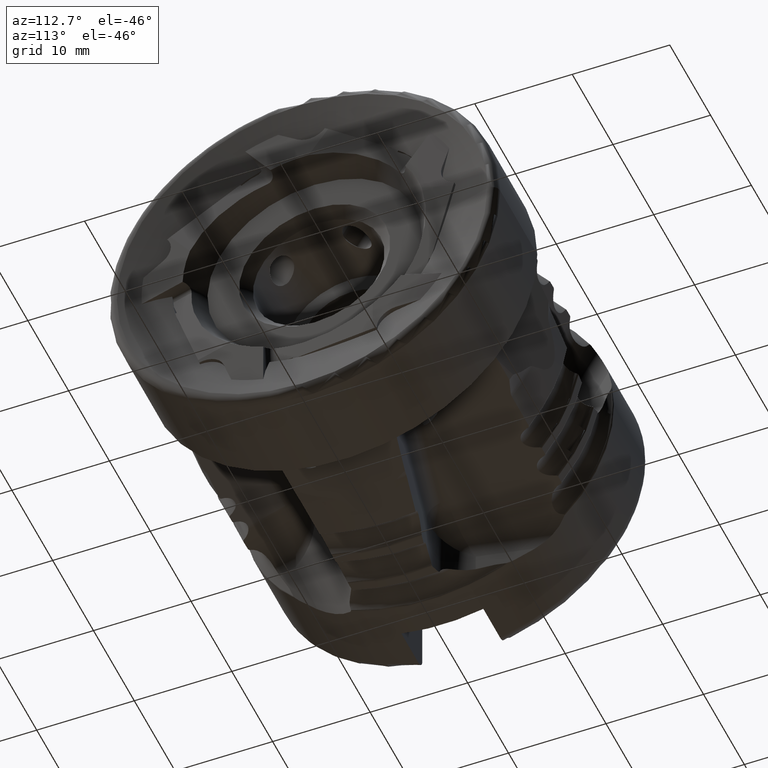
[diagram: clean part render]
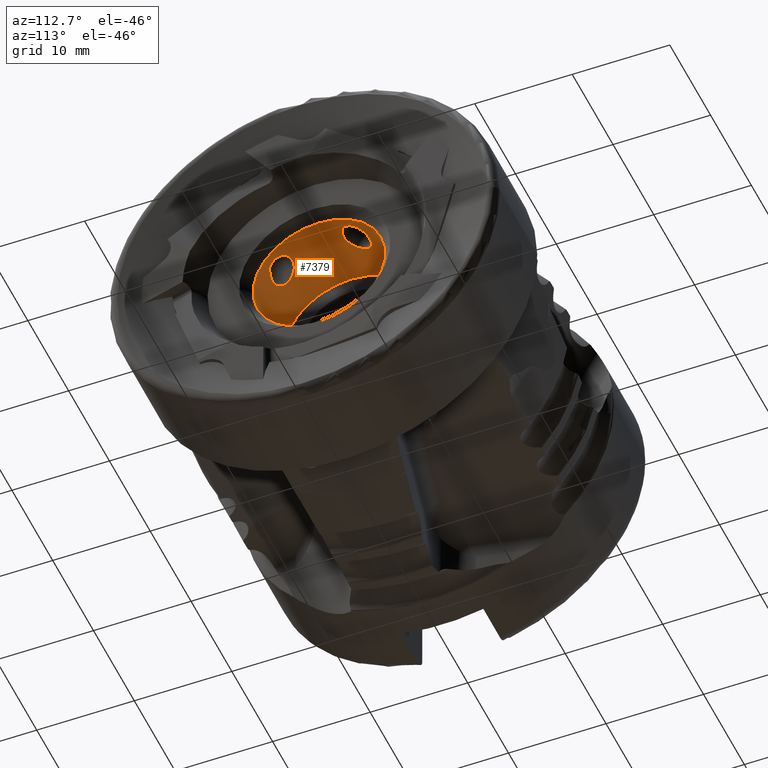
[diagram: same view with one face highlighted and labeled with its STEP entity id]
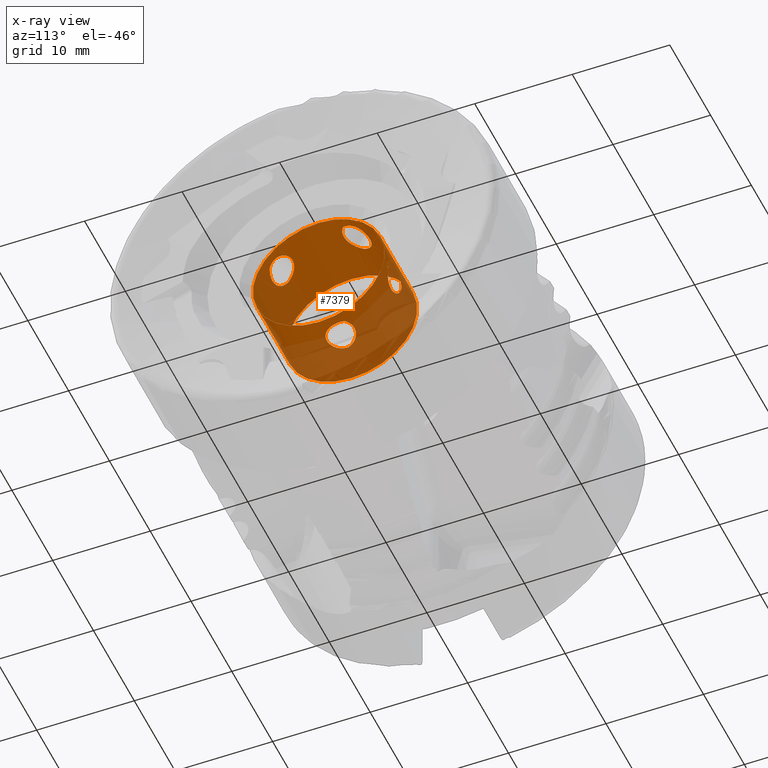
[diagram: x-ray of the same camera — body ghosted, the highlighted face saturated]
A machine part, auxiliary view. The second image highlights one B-rep face of the part: STEP entity #7379.
The next image is the same camera in x-ray: the body ghosted, the highlighted face saturated — about 40% of this face is hidden behind the body in this view.
In plain terms, the highlighted cylindrical surface (bore or boss wall) has radius 6.75 mm, axis along (1, -0, -0).
Its self-contained STEP definition (entity closure, byte-faithful):
#13 = CARTESIAN_POINT ( 'NONE',  ( -6.562962729986569600, 6.361129896721958900, -2.258414077148994900 ) ) ;
#57 = CARTESIAN_POINT ( 'NONE',  ( -4.628507243692084200, 2.143290621198036500, -6.400687878117828700 ) ) ;
#77 = CARTESIAN_POINT ( 'NONE',  ( -6.632598810697708700, 2.509359448074864200, -6.266384253155163000 ) ) ;
#100 = CARTESIAN_POINT ( 'NONE',  ( -4.628507243692084200, 2.143290621198036500, -6.400687878117828700 ) ) ;
#106 = EDGE_LOOP ( 'NONE', ( #3156, #3331 ) ) ;
#135 = CARTESIAN_POINT ( 'NONE',  ( -4.753537271056022600, 1.928210888572159400, 6.469583340819735200 ) ) ;
#144 = CARTESIAN_POINT ( 'NONE',  ( -5.340375718819776000, -5.720890938128531100, 3.582658467181218500 ) ) ;
#178 = CARTESIAN_POINT ( 'NONE',  ( -4.601500760271938400, 0.6569108333281361600, -6.718891829771303400 ) ) ;
#193 = ORIENTED_EDGE ( 'NONE', *, *, #6570, .T. ) ;
#214 = CARTESIAN_POINT ( 'NONE',  ( -6.897203383671992100, -0.03925624423654647300, -6.750224400219017300 ) ) ;
#283 = CARTESIAN_POINT ( 'NONE',  ( -5.340375718819649000, -5.175163203720067900, -4.333788254320718500 ) ) ;
#346 = ORIENTED_EDGE ( 'NONE', *, *, #6576, .T. ) ;
#469 = CARTESIAN_POINT ( 'NONE',  ( -6.151962625149814700, 6.726691502576442400, 0.5604664713769328400 ) ) ;
#470 = B_SPLINE_CURVE_WITH_KNOTS ( 'NONE', 3,
 ( #7919, #2109, #8747, #3788, #9574, #4587, #10460, #5445, #469, #6293, #1326, #7124, #2139, #7957, #2991, #8780 ),
 .UNSPECIFIED., .F., .F.,
 ( 4, 2, 2, 2, 2, 2, 2, 4 ),
 ( 9.492088142561525400E-005, 0.001078229137416579200, 0.001569883265412061000, 0.002061537393407543100, 0.002553191521403025100, 0.003044845649398506800, 0.003536499777393988800, 0.004028153905389470500 ),
 .UNSPECIFIED. ) ;
#473 = VERTEX_POINT ( 'NONE', #911 ) ;
#636 = CYLINDRICAL_SURFACE ( 'NONE', #1897, 6.749999999999999100 ) ;
#682 = CARTESIAN_POINT ( 'NONE',  ( -5.062785515951875800, 3.889592762792239500, 5.517271498485262000 ) ) ;
#685 = CARTESIAN_POINT ( 'NONE',  ( -5.835260772214229300, -6.492304655153692900, -1.848626511211653100 ) ) ;
#713 = CARTESIAN_POINT ( 'NONE',  ( -7.704817309026283900, 3.124709898369229000, 5.988172267619707300 ) ) ;
#719 = CARTESIAN_POINT ( 'NONE',  ( -4.572706844893129000, -5.432797837288903000, 4.007384649799543100 ) ) ;
#754 = CARTESIAN_POINT ( 'NONE',  ( -4.881217781916467000, -4.175304007321551000, 5.304342852305850900 ) ) ;
#802 = CARTESIAN_POINT ( 'NONE',  ( -7.625416331893173800, -4.558061580945461900, 4.982963148186132500 ) ) ;
#835 = CARTESIAN_POINT ( 'NONE',  ( -4.601500760272130300, 6.593042468273589300, -1.451492430105068900 ) ) ;
#867 = CARTESIAN_POINT ( 'NONE',  ( -6.897203383672222200, 6.407714055678463100, -2.123268962398412500 ) ) ;
#902 = FACE_OUTER_BOUND ( 'NONE', #9197, .T. ) ;
#911 = CARTESIAN_POINT ( 'NONE',  ( -4.628507243691975000, -5.496188475718495800, 3.918470650570091300 ) ) ;
#942 = CARTESIAN_POINT ( 'NONE',  ( -6.151031138283658000, 2.611742987942829300, -6.224250934902922700 ) ) ;
#952 = CARTESIAN_POINT ( 'NONE',  ( -7.515866037187138600, 2.335365086268667200, 6.334856948482054900 ) ) ;
#998 = CARTESIAN_POINT ( 'NONE',  ( -4.892633294636015200, -5.608320125268617700, 3.756963027205478100 ) ) ;
#1031 = CARTESIAN_POINT ( 'NONE',  ( -4.800888753622814400, 0.3506565822136740200, -6.741617073394024800 ) ) ;
#1072 = CARTESIAN_POINT ( 'NONE',  ( -7.373614632049945600, 0.3436279499441656200, -6.744461946211076000 ) ) ;
#1074 = ORIENTED_EDGE ( 'NONE', *, *, #9216, .T. ) ;
#1096 = CARTESIAN_POINT ( 'NONE',  ( -7.731765150163926000, -5.931241050126804000, -3.222247601487198100 ) ) ;
#1135 = CARTESIAN_POINT ( 'NONE',  ( -4.892633294635844600, -5.306150397106824500, -4.172863977961065500 ) ) ;
#1164 = FACE_BOUND ( 'NONE', #9493, .T. ) ;
#1326 = CARTESIAN_POINT ( 'NONE',  ( -5.658286513664422500, 6.728289631805298900, 0.5423591512712820900 ) ) ;
#1485 = CARTESIAN_POINT ( 'NONE',  ( -4.572706844893046400, 2.132422425767472000, 6.405247744653068200 ) ) ;
#1487 = CARTESIAN_POINT ( 'NONE',  ( -4.444159013303385000, -5.749503099887510500, -3.538411708513420400 ) ) ;
#1513 = CARTESIAN_POINT ( 'NONE',  ( -5.373007371697509500, 4.043427036645010000, 5.405251288036574000 ) ) ;
#1517 = CARTESIAN_POINT ( 'NONE',  ( -6.443439033373020500, -6.482425979309440800, -1.881745218601790400 ) ) ;
#1600 = CARTESIAN_POINT ( 'NONE',  ( -5.162030374138344000, -3.987888434183093400, 5.446355618576665900 ) ) ;
#1634 = CARTESIAN_POINT ( 'NONE',  ( -7.731765150163965900, -4.897393860734616100, 4.645216181496726500 ) ) ;
#1667 = CARTESIAN_POINT ( 'NONE',  ( -4.800888753623072000, 6.520017691111437600, -1.749780017751231000 ) ) ;
#1702 = CARTESIAN_POINT ( 'NONE',  ( -7.373614632050092200, 6.520551359123761200, -1.757343758318624400 ) ) ;
#1773 = CARTESIAN_POINT ( 'NONE',  ( -5.657490306637339600, 2.594844251194516400, -6.231438139822872200 ) ) ;
#1780 = CARTESIAN_POINT ( 'NONE',  ( -7.081708203612381100, 1.864875385867853300, 6.491716583334556000 ) ) ;
#1790 = CARTESIAN_POINT ( 'NONE',  ( -7.532450905896221900, -5.315264945147697900, 4.167466447390111700 ) ) ;
#1829 = CARTESIAN_POINT ( 'NONE',  ( -4.628507243691975000, -5.496188475718495800, 3.918470650570091300 ) ) ;
#1865 = CARTESIAN_POINT ( 'NONE',  ( -5.062785515951890900, 0.09622417340644987000, -6.749811668247923000 ) ) ;
#1897 = AXIS2_PLACEMENT_3D ( 'NONE', #8126, #9764, #6468 ) ;
#1899 = CARTESIAN_POINT ( 'NONE',  ( -7.704817309026432200, 0.9918159368218434400, -6.681191525702776500 ) ) ;
#1915 = B_SPLINE_CURVE_WITH_KNOTS ( 'NONE', 3,
 ( #5919, #7560, #1790, #7596, #2623, #8424, #3472, #9252, #4281, #10114, #5116, #144, #5952, #998, #6804, #1829 ),
 .UNSPECIFIED., .F., .F.,
 ( 4, 2, 2, 2, 2, 2, 2, 4 ),
 ( 9.492088147291394000E-005, 0.001078229137463552700, 0.001569883265458871200, 0.002061537393454189400, 0.002553191521449507500, 0.003044845649444826500, 0.003536499777440144600, 0.004028153905435463200 ),
 .UNSPECIFIED. ) ;
#1927 = CARTESIAN_POINT ( 'NONE',  ( -7.532450905896364900, -5.606003318887947500, -3.767299406186830800 ) ) ;
#1970 = CARTESIAN_POINT ( 'NONE',  ( -4.628507243691759100, -5.425102689420846500, -4.016311841632656900 ) ) ;
#1993 = CARTESIAN_POINT ( 'NONE',  ( -4.628507243692175700, 6.749729141089992400, 0.06046918157664112800 ) ) ;
#2048 = CARTESIAN_POINT ( 'NONE',  ( -4.628507243691824900, 2.028271402851390200, 6.438059887603970700 ) ) ;
#2109 = CARTESIAN_POINT ( 'NONE',  ( -7.690862113869937600, 6.735028101375398500, -0.5555380486520457000 ) ) ;
#2139 = CARTESIAN_POINT ( 'NONE',  ( -5.184134031673846900, 6.738217009586636900, 0.4055334104599771500 ) ) ;
#2152 = DIRECTION ( 'NONE',  ( 1.000000000000000000, 0.0000000000000000000, 0.0000000000000000000 ) ) ;
#2298 = VERTEX_POINT ( 'NONE', #9237 ) ;
#2305 = CARTESIAN_POINT ( 'NONE',  ( -4.628507243691824900, 2.028271402851390200, 6.438059887603970700 ) ) ;
#2309 = CARTESIAN_POINT ( 'NONE',  ( -4.464062723854026700, -6.047554477961855700, -3.006616352069055900 ) ) ;
#2346 = CARTESIAN_POINT ( 'NONE',  ( -5.835260772214255100, 4.165789398391856600, 5.311651193511378800 ) ) ;
#2348 = CARTESIAN_POINT ( 'NONE',  ( -6.789733617201006800, -6.448441138775673500, -1.995498580951676100 ) ) ;
#2389 = CARTESIAN_POINT ( 'NONE',  ( -4.572706844893063200, 6.750707374785545100, -0.04872383724045293400 ) ) ;
#2417 = VERTEX_POINT ( 'NONE', #1993 ) ;
#2420 = CARTESIAN_POINT ( 'NONE',  ( -5.486772367164498100, -3.851273976421645700, 5.543593030414357700 ) ) ;
#2497 = CARTESIAN_POINT ( 'NONE',  ( -5.062785515952197300, 6.449187275704459500, -1.994291887175809100 ) ) ;
#2529 = CARTESIAN_POINT ( 'NONE',  ( -7.704817309026309700, 6.660678716905369600, -1.121328714436706800 ) ) ;
#2558 = AXIS2_PLACEMENT_3D ( 'NONE', #9839, #4842, #10715 ) ;
#2560 = EDGE_CURVE ( 'NONE', #7956, #7956, #9401, .T. ) ;
#2606 = CARTESIAN_POINT ( 'NONE',  ( -5.183686201609404500, 2.467755241413539700, -6.283170856041898000 ) ) ;
#2614 = CARTESIAN_POINT ( 'NONE',  ( -6.315232248109732700, 1.567528796804754900, 6.565612385493104800 ) ) ;
#2623 = CARTESIAN_POINT ( 'NONE',  ( -7.065396372821100900, -5.585452374138565500, 3.791094927635031200 ) ) ;
#2693 = CARTESIAN_POINT ( 'NONE',  ( -5.373007371697569000, -0.09407419611822119600, -6.749606931749255500 ) ) ;
#2726 = CARTESIAN_POINT ( 'NONE',  ( -7.690862113870346100, -5.775289263691403700, -3.509310469380919600 ) ) ;
#2769 = CARTESIAN_POINT ( 'NONE',  ( -7.065396372821217200, -5.331545239701553900, -4.140568116952782600 ) ) ;
#2991 = CARTESIAN_POINT ( 'NONE',  ( -4.755126716295889000, 6.748777379918471400, 0.1667072676134653000 ) ) ;
#3037 = B_SPLINE_CURVE_WITH_KNOTS ( 'NONE', 3,
 ( #4155, #9157, #9191, #4225, #10057, #5050, #77, #5899, #942, #6744, #1773, #7581, #2606, #8403, #3454, #57 ),
 .UNSPECIFIED., .F., .F.,
 ( 4, 2, 2, 2, 2, 2, 2, 4 ),
 ( 4.773437459959570800E-005, 0.001031519548520023900, 0.001523412135480237700, 0.002015304722440451500, 0.002507197309400664900, 0.002999089896360879100, 0.003490982483321093800, 0.003982875070281308000 ),
 .UNSPECIFIED. ) ;
#3055 = B_SPLINE_CURVE_WITH_KNOTS ( 'NONE', 3,
 ( #3321, #2389, #4121, #9948, #4944, #10810, #5801, #835, #6639, #1667, #7475, #2497, #8299, #3348, #9123, #4163, #9981, #4974, #13, #5838, #867, #6673, #1702, #7506, #2529, #8335 ),
 .UNSPECIFIED., .F., .F.,
 ( 4, 2, 2, 2, 2, 2, 2, 2, 2, 2, 2, 2, 4 ),
 ( 3.081574959853542000E-016, 0.0003629529093629713600, 0.0007259058187256344900, 0.001451811637450960800, 0.001814764546813624700, 0.002177717456176289000, 0.002540670365538951600, 0.002903623274901614600, 0.003629529093626938100, 0.003992482002989597600, 0.004355434912352257200, 0.005081340731077578000, 0.005807246549802899700 ),
 .UNSPECIFIED. ) ;
#3098 = VERTEX_POINT ( 'NONE', #7087 ) ;
#3102 = EDGE_CURVE ( 'NONE', #4486, #2417, #470, .T. ) ;
#3119 = FACE_OUTER_BOUND ( 'NONE', #3928, .T. ) ;
#3156 = ORIENTED_EDGE ( 'NONE', *, *, #3102, .T. ) ;
#3168 = CARTESIAN_POINT ( 'NONE',  ( -4.444159013303391200, 2.571619498217228000, 6.242108335406389800 ) ) ;
#3171 = CARTESIAN_POINT ( 'NONE',  ( -4.660911963582198500, -6.229479787515085600, -2.601142514332613200 ) ) ;
#3200 = CARTESIAN_POINT ( 'NONE',  ( -6.443439033373064000, 4.138330693973010500, 5.332638250648313900 ) ) ;
#3203 = CARTESIAN_POINT ( 'NONE',  ( -7.731765150164005000, 6.692464426676080400, -0.8794429473685107000 ) ) ;
#3205 = CARTESIAN_POINT ( 'NONE',  ( -7.201737222025470500, -6.368492439751256600, -2.241224234414351400 ) ) ;
#3242 = CARTESIAN_POINT ( 'NONE',  ( -4.464451342122298900, -5.220154731460303000, 4.280901470319702400 ) ) ;
#3286 = CARTESIAN_POINT ( 'NONE',  ( -6.084331092814851500, -3.748938980525146300, 5.613305897608446700 ) ) ;
#3321 = CARTESIAN_POINT ( 'NONE',  ( -4.628507243692175700, 6.749729141089992400, 0.06046918157664112800 ) ) ;
#3331 = ORIENTED_EDGE ( 'NONE', *, *, #5027, .T. ) ;
#3338 = AXIS2_PLACEMENT_3D ( 'NONE', #7138, #2152, #7966 ) ;
#3348 = CARTESIAN_POINT ( 'NONE',  ( -5.373007371697895000, 6.390187129538333000, -2.175213124495054100 ) ) ;
#3380 = FACE_BOUND ( 'NONE', #4090, .T. ) ;
#3454 = CARTESIAN_POINT ( 'NONE',  ( -4.755139410613847600, 2.244045035012940800, -6.366949943338774200 ) ) ;
#3459 = CARTESIAN_POINT ( 'NONE',  ( -5.821947754161459300, 1.543615894936180000, 6.571130104895596300 ) ) ;
#3472 = CARTESIAN_POINT ( 'NONE',  ( -6.633057441174085700, -5.713337845861407700, 3.594751608664773700 ) ) ;
#3507 = CARTESIAN_POINT ( 'NONE',  ( -4.528765209375205100, 1.931819859145514200, -6.468709674331024400 ) ) ;
#3510 = B_SPLINE_CURVE_WITH_KNOTS ( 'NONE', 3,
 ( #2305, #1485, #6456, #8115, #3168, #8937, #3979, #9795, #4799, #10656, #5647, #682, #6491, #1513, #7326, #2346, #8149, #3200, #8974, #4014, #9823, #4830, #10701, #5679, #713, #6530 ),
 .UNSPECIFIED., .F., .F.,
 ( 4, 2, 2, 2, 2, 2, 2, 2, 2, 2, 2, 2, 4 ),
 ( 3.295974604355933500E-017, 0.0003629529093626679500, 0.0007259058187253029400, 0.001451811637450574200, 0.001814764546813209900, 0.002177717456175845800, 0.002540670365538481500, 0.002903623274901116800, 0.003629529093626385600, 0.003992482002989019900, 0.004355434912351654300, 0.005081340731076923100, 0.005807246549802191900 ),
 .UNSPECIFIED. ) ;
#3545 = CARTESIAN_POINT ( 'NONE',  ( -5.835260772214381200, -0.2480841814183603600, -6.745805656273743600 ) ) ;
#3591 = CARTESIAN_POINT ( 'NONE',  ( -3.500000000000002700, 0.0000000000000000000, -6.749999999999999100 ) ) ;
#3600 = ORIENTED_EDGE ( 'NONE', *, *, #2560, .T. ) ;
#3605 = CARTESIAN_POINT ( 'NONE',  ( -6.633057441174116800, -5.184330430859843900, -4.322867850468114200 ) ) ;
#3613 = VERTEX_POINT ( 'NONE', #9740 ) ;
#3761 = CARTESIAN_POINT ( 'NONE',  ( -7.731765150163938400, 2.904485187897867700, 6.093149086743364900 ) ) ;
#3788 = CARTESIAN_POINT ( 'NONE',  ( -7.195127315247674500, 6.750135562775411400, 0.1118006751513406800 ) ) ;
#3928 = EDGE_LOOP ( 'NONE', ( #3600 ) ) ;
#3979 = CARTESIAN_POINT ( 'NONE',  ( -4.464062723854017800, 3.125329596031880100, 5.987067058970756900 ) ) ;
#3983 = CARTESIAN_POINT ( 'NONE',  ( -4.881217781916480400, -6.334969729293277400, -2.331817998322640600 ) ) ;
#3988 = CARTESIAN_POINT ( 'NONE',  ( -4.628507243691759100, -5.425102689420846500, -4.016311841632656900 ) ) ;
#4014 = CARTESIAN_POINT ( 'NONE',  ( -6.789733617201059200, 4.043973831642115400, 5.404690865889412200 ) ) ;
#4016 = CARTESIAN_POINT ( 'NONE',  ( -7.625416331893043200, -6.147598062460839500, -2.795153873098911800 ) ) ;
#4056 = EDGE_CURVE ( 'NONE', #8186, #8204, #3510, .T. ) ;
#4059 = CARTESIAN_POINT ( 'NONE',  ( -4.423760434449480500, -4.901764392209607900, 4.646910705136242800 ) ) ;
#4087 = CARTESIAN_POINT ( 'NONE',  ( -6.562962729986192100, -3.818799701756661900, 5.566073709959102400 ) ) ;
#4090 = EDGE_LOOP ( 'NONE', ( #9304, #1074 ) ) ;
#4121 = CARTESIAN_POINT ( 'NONE',  ( -4.528765209375038100, 6.749073654340992200, -0.1616713556976508400 ) ) ;
#4155 = CARTESIAN_POINT ( 'NONE',  ( -7.731765150163988100, 1.231685296287867900, -6.636674719383862000 ) ) ;
#4163 = CARTESIAN_POINT ( 'NONE',  ( -5.835260772214711600, 6.338980198965968400, -2.320510665866939400 ) ) ;
#4168 = CARTESIAN_POINT ( 'NONE',  ( -7.711300335031898700, 2.756939837632047300, 6.163481074076949000 ) ) ;
#4225 = CARTESIAN_POINT ( 'NONE',  ( -7.194614662274393200, 2.192709914365976500, -6.385054007797604600 ) ) ;
#4271 = CARTESIAN_POINT ( 'NONE',  ( -5.337896825870650700, 1.640187364234569700, 6.547812395982935700 ) ) ;
#4281 = CARTESIAN_POINT ( 'NONE',  ( -6.151962625150679800, -5.771441667781663100, 3.500423161814223000 ) ) ;
#4324 = CARTESIAN_POINT ( 'NONE',  ( -4.444159013303417000, 1.588535345640249100, -6.561531739633100100 ) ) ;
#4346 = CARTESIAN_POINT ( 'NONE',  ( -6.443439033373271800, -0.2135337402258184700, -6.746644720654988000 ) ) ;
#4407 = CARTESIAN_POINT ( 'NONE',  ( -6.151962625150692300, -5.112573815222108700, -4.407276962056849700 ) ) ;
#4486 = VERTEX_POINT ( 'NONE', #3203 ) ;
#4587 = CARTESIAN_POINT ( 'NONE',  ( -6.783583853415651200, 6.739528286536342200, 0.3852758091118223000 ) ) ;
#4604 = EDGE_CURVE ( 'NONE', #3098, #8718, #3037, .T. ) ;
#4799 = CARTESIAN_POINT ( 'NONE',  ( -4.660911963582190500, 3.510841805179289100, 5.765964847441669100 ) ) ;
#4802 = CARTESIAN_POINT ( 'NONE',  ( -5.162030374138334200, -6.412117298941924800, -2.109690838038266400 ) ) ;
#4830 = CARTESIAN_POINT ( 'NONE',  ( -7.201737222025527400, 3.834860060237885300, 5.556494429268099100 ) ) ;
#4833 = CARTESIAN_POINT ( 'NONE',  ( -7.731765150163926000, -5.931241050126804000, -3.222247601487198100 ) ) ;
#4842 = DIRECTION ( 'NONE',  ( 1.000000000000000000, -0.0000000000000000000, -0.0000000000000000000 ) ) ;
#4864 = ORIENTED_EDGE ( 'NONE', *, *, #10174, .F. ) ;
#4870 = CARTESIAN_POINT ( 'NONE',  ( -4.601500760271951800, -4.480717557239457500, 5.049575173750509900 ) ) ;
#4908 = CARTESIAN_POINT ( 'NONE',  ( -6.897203383671884700, -3.935923383390841600, 5.484120497044258100 ) ) ;
#4944 = CARTESIAN_POINT ( 'NONE',  ( -4.444159013303356600, 6.731271935823616400, -0.5168379248413682600 ) ) ;
#4974 = CARTESIAN_POINT ( 'NONE',  ( -6.443439033373559600, 6.350454870105028100, -2.287910528782974400 ) ) ;
#5009 = EDGE_CURVE ( 'NONE', #473, #3613, #8687, .T. ) ;
#5027 = EDGE_CURVE ( 'NONE', #2417, #4486, #3055, .T. ) ;
#5043 = CARTESIAN_POINT ( 'NONE',  ( -4.528765209375100300, -5.555143321247167700, -3.836211086394459600 ) ) ;
#5050 = CARTESIAN_POINT ( 'NONE',  ( -6.782854380227430400, 2.449435534377363900, -6.290468590226884900 ) ) ;
#5107 = CARTESIAN_POINT ( 'NONE',  ( -4.891245222027425400, 1.840733494421708400, 6.494598475840686700 ) ) ;
#5116 = CARTESIAN_POINT ( 'NONE',  ( -5.658286513665124100, -5.762091365770456400, 3.516011648294123000 ) ) ;
#5149 = CARTESIAN_POINT ( 'NONE',  ( -4.464062723853983200, 0.9906649655363907200, -6.680661642270499600 ) ) ;
#5186 = CARTESIAN_POINT ( 'NONE',  ( -6.789733617201292800, -0.09484597043634034100, -6.749474938743504500 ) ) ;
#5256 = CARTESIAN_POINT ( 'NONE',  ( -5.658286513665056600, -5.124509944644002800, -4.393567189160887000 ) ) ;
#5445 = CARTESIAN_POINT ( 'NONE',  ( -6.313985754405390300, 6.728632043531531400, 0.5384972532065018800 ) ) ;
#5571 = FACE_BOUND ( 'NONE', #7615, .T. ) ;
#5647 = CARTESIAN_POINT ( 'NONE',  ( -4.881217781916479500, 3.754489939404948500, 5.610082169030199000 ) ) ;
#5650 = CARTESIAN_POINT ( 'NONE',  ( -5.486772367164443900, -6.462379383972227700, -1.949714755017240000 ) ) ;
#5679 = CARTESIAN_POINT ( 'NONE',  ( -7.625416331893083200, 3.330561082621548200, 5.874794463366263200 ) ) ;
#5724 = CARTESIAN_POINT ( 'NONE',  ( -4.800888753622818000, -4.246310226544491000, 5.247972014299550700 ) ) ;
#5767 = CARTESIAN_POINT ( 'NONE',  ( -7.373614632049839900, -4.242296117877659300, 5.254404891147263600 ) ) ;
#5801 = CARTESIAN_POINT ( 'NONE',  ( -4.464062723854093300, 6.659819098126984500, -1.122259610192143800 ) ) ;
#5838 = CARTESIAN_POINT ( 'NONE',  ( -6.789733617201537000, 6.389823105350076000, -2.175906337407239800 ) ) ;
#5899 = CARTESIAN_POINT ( 'NONE',  ( -6.314534282920853100, 2.591265805688427900, -6.232960610504730600 ) ) ;
#5909 = CARTESIAN_POINT ( 'NONE',  ( -7.661734827048907600, 2.610399952864070400, 6.226568455415978100 ) ) ;
#5919 = CARTESIAN_POINT ( 'NONE',  ( -7.731765150163965900, -4.897393860734616100, 4.645216181496726500 ) ) ;
#5941 = CARTESIAN_POINT ( 'NONE',  ( -4.628507243691824900, 2.028271402851390200, 6.438059887603970700 ) ) ;
#5952 = CARTESIAN_POINT ( 'NONE',  ( -5.184134031674192400, -5.689698630522269000, 3.632541164132216900 ) ) ;
#5992 = CARTESIAN_POINT ( 'NONE',  ( -4.660911963582157600, 0.5488184176109829300, -6.728384586765130800 ) ) ;
#6028 = CARTESIAN_POINT ( 'NONE',  ( -7.201737222025787600, 0.1635585201870747900, -6.749372610440863300 ) ) ;
#6094 = CARTESIAN_POINT ( 'NONE',  ( -5.184134031674043200, -5.212965514561597400, -4.288708005830367900 ) ) ;
#6162 = B_SPLINE_CURVE_WITH_KNOTS ( 'NONE', 3,
 ( #3988, #8094, #5043, #6460, #1487, #7294, #2309, #8117, #3171, #8940, #3983, #9797, #4802, #10661, #5650, #685, #6493, #1517, #7329, #2348, #8151, #3205, #8976, #4016, #9828, #4833 ),
 .UNSPECIFIED., .F., .F.,
 ( 4, 2, 2, 2, 2, 2, 2, 2, 2, 2, 2, 2, 4 ),
 ( 2.118387885562784400E-016, 0.0003629529093628378400, 0.0007259058187254638300, 0.001451811637450714500, 0.001814764546813339100, 0.002177717456175962900, 0.002540670365538587300, 0.002903623274901211700, 0.003629529093626461000, 0.003992482002989085900, 0.004355434912351709000, 0.005081340731076958700, 0.005807246549802208400 ),
 .UNSPECIFIED. ) ;
#6293 = CARTESIAN_POINT ( 'NONE',  ( -5.823247590510537600, 6.726506487045809600, 0.5626826068952970300 ) ) ;
#6295 = CARTESIAN_POINT ( 'NONE',  ( -4.628507243692084200, 2.143290621198036500, -6.400687878117828700 ) ) ;
#6302 = B_SPLINE_CURVE_WITH_KNOTS ( 'NONE', 3,
 ( #100, #10073, #3507, #9285, #4324, #10152, #5149, #178, #5992, #1031, #6835, #1865, #7663, #2693, #8494, #3545, #9324, #4346, #10196, #5186, #214, #6028, #1072, #6867, #1899, #7706 ),
 .UNSPECIFIED., .F., .F.,
 ( 4, 2, 2, 2, 2, 2, 2, 2, 2, 2, 2, 2, 4 ),
 ( 1.889455522400814100E-016, 0.0003629529093628756800, 0.0007259058187255624900, 0.001451811637450935900, 0.001814764546813623200, 0.002177717456176310700, 0.002540670365538998500, 0.002903623274901685800, 0.003629529093627060400, 0.003992482002989746800, 0.004355434912352432400, 0.005081340731077802600, 0.005807246549803172000 ),
 .UNSPECIFIED. ) ;
#6456 = CARTESIAN_POINT ( 'NONE',  ( -4.528765209375118900, 2.239337051813883800, 6.368791281502817400 ) ) ;
#6460 = CARTESIAN_POINT ( 'NONE',  ( -4.464451342122262500, -5.684495764253172800, -3.641790867850669000 ) ) ;
#6468 = DIRECTION ( 'NONE',  ( 0.0000000000000000000, 0.0000000000000000000, -1.000000000000000000 ) ) ;
#6491 = CARTESIAN_POINT ( 'NONE',  ( -5.162030374138338700, 3.947466703274197900, 5.475723725137569000 ) ) ;
#6493 = CARTESIAN_POINT ( 'NONE',  ( -6.084331092814730700, -6.497057007735485900, -1.830845929635244400 ) ) ;
#6506 = ORIENTED_EDGE ( 'NONE', *, *, #4604, .T. ) ;
#6530 = CARTESIAN_POINT ( 'NONE',  ( -7.731765150163938400, 2.904485187897867700, 6.093149086743364900 ) ) ;
#6538 = CARTESIAN_POINT ( 'NONE',  ( -4.628507243691975000, -5.496188475718495800, 3.918470650570091300 ) ) ;
#6570 = EDGE_CURVE ( 'NONE', #3613, #473, #1915, .T. ) ;
#6575 = CARTESIAN_POINT ( 'NONE',  ( -5.062785515951874900, -4.045286745903339000, 5.404153198400496000 ) ) ;
#6576 = EDGE_CURVE ( 'NONE', #8718, #3098, #6302, .T. ) ;
#6601 = CARTESIAN_POINT ( 'NONE',  ( -7.704817309026362100, -4.729501794730159000, 4.822222706315067800 ) ) ;
#6639 = CARTESIAN_POINT ( 'NONE',  ( -4.660911963582373500, 6.568668223250533300, -1.557227849669494200 ) ) ;
#6673 = CARTESIAN_POINT ( 'NONE',  ( -7.201737222025967900, 6.469577164376495700, -1.930117441575345500 ) ) ;
#6703 = B_SPLINE_CURVE_WITH_KNOTS ( 'NONE', 3,
 ( #10064, #4168, #5909, #952, #6753, #1780, #7589, #2614, #8413, #3459, #9242, #4271, #10102, #5107, #135, #5941 ),
 .UNSPECIFIED., .F., .F.,
 ( 4, 2, 2, 2, 2, 2, 2, 4 ),
 ( 0.001589601431055851100, 0.002081154011416485800, 0.002572706591777120500, 0.003555811752498392000, 0.004047364332859026300, 0.004538916913219661000, 0.005030469493580295600, 0.005522022073940930300 ),
 .UNSPECIFIED. ) ;
#6744 = CARTESIAN_POINT ( 'NONE',  ( -5.823170344173398400, 2.613708238653683000, -6.223425935841311800 ) ) ;
#6753 = CARTESIAN_POINT ( 'NONE',  ( -7.420129884510642700, 2.207261435236826100, 6.380039816279002600 ) ) ;
#6787 = B_SPLINE_CURVE_WITH_KNOTS ( 'NONE', 3,
 ( #1096, #2726, #1927, #7735, #2769, #8555, #3605, #9399, #4407, #10256, #5256, #283, #6094, #1135, #6940, #1970 ),
 .UNSPECIFIED., .F., .F.,
 ( 4, 2, 2, 2, 2, 2, 2, 4 ),
 ( 9.492088147403771600E-005, 0.001078229137464818200, 0.001569883265460210000, 0.002061537393455601900, 0.002553191521450994200, 0.003044845649446385600, 0.003536499777441777900, 0.004028153905437170100 ),
 .UNSPECIFIED. ) ;
#6804 = CARTESIAN_POINT ( 'NONE',  ( -4.755126716295404100, -5.557863664960250600, 3.831962802336284400 ) ) ;
#6835 = CARTESIAN_POINT ( 'NONE',  ( -4.881217781916466200, 0.2600773969165233700, -6.745485630847988500 ) ) ;
#6867 = CARTESIAN_POINT ( 'NONE',  ( -7.625416331893245700, 0.7586370291718496100, -6.710463245547317400 ) ) ;
#6874 = EDGE_CURVE ( 'NONE', #8204, #8186, #6703, .T. ) ;
#6940 = CARTESIAN_POINT ( 'NONE',  ( -4.755126716295183800, -5.361887518254389900, -4.101700827505842600 ) ) ;
#7087 = CARTESIAN_POINT ( 'NONE',  ( -7.731765150163988100, 1.231685296287867900, -6.636674719383862000 ) ) ;
#7124 = CARTESIAN_POINT ( 'NONE',  ( -5.340375718819419900, 6.734131802921506700, 0.4642237384145199700 ) ) ;
#7138 = CARTESIAN_POINT ( 'NONE',  ( -3.500000000000002700, 0.0000000000000000000, 0.0000000000000000000 ) ) ;
#7282 = CIRCLE ( 'NONE', #2558, 6.749999999999998200 ) ;
#7294 = CARTESIAN_POINT ( 'NONE',  ( -4.423760434449495600, -5.934203206376340100, -3.225880587324424700 ) ) ;
#7326 = CARTESIAN_POINT ( 'NONE',  ( -5.486772367164463500, 4.082161166555706300, 5.375843667610301900 ) ) ;
#7329 = CARTESIAN_POINT ( 'NONE',  ( -6.562962729986023400, -6.473724677992542800, -1.911882972460656300 ) ) ;
#7379 = ADVANCED_FACE ( 'NONE', ( #3380, #1164, #7790, #9727, #5571, #3119, #902 ), #636, .F. ) ;
#7405 = CARTESIAN_POINT ( 'NONE',  ( -5.373007371697536200, -3.891211789861521300, 5.515842138235611500 ) ) ;
#7475 = CARTESIAN_POINT ( 'NONE',  ( -4.881217781916740600, 6.495706400293234300, -1.837121392165757400 ) ) ;
#7506 = CARTESIAN_POINT ( 'NONE',  ( -7.625416331893327500, 6.616461531613167900, -1.352140492905701900 ) ) ;
#7560 = CARTESIAN_POINT ( 'NONE',  ( -7.690862113870214700, -5.122215119519546900, 4.408189914146285900 ) ) ;
#7581 = CARTESIAN_POINT ( 'NONE',  ( -5.339739411065238500, 2.522263008472998000, -6.261168205254120000 ) ) ;
#7589 = CARTESIAN_POINT ( 'NONE',  ( -6.787789310910929100, 1.694939465931668600, 6.534319421962618600 ) ) ;
#7596 = CARTESIAN_POINT ( 'NONE',  ( -7.195127315248259800, -5.526689172670011800, 3.877181488594725300 ) ) ;
#7615 = EDGE_LOOP ( 'NONE', ( #6506, #346 ) ) ;
#7663 = CARTESIAN_POINT ( 'NONE',  ( -5.162030374138365300, 0.02498200358573638600, -6.750216262238545500 ) ) ;
#7706 = CARTESIAN_POINT ( 'NONE',  ( -7.731765150163988100, 1.231685296287867900, -6.636674719383862000 ) ) ;
#7735 = CARTESIAN_POINT ( 'NONE',  ( -7.195127315248405400, -5.395259596570075400, -4.058078780953874100 ) ) ;
#7790 = FACE_BOUND ( 'NONE', #8179, .T. ) ;
#7919 = CARTESIAN_POINT ( 'NONE',  ( -7.731765150164005000, 6.692464426676080400, -0.8794429473685107000 ) ) ;
#7943 = ORIENTED_EDGE ( 'NONE', *, *, #6874, .T. ) ;
#7956 = VERTEX_POINT ( 'NONE', #3591 ) ;
#7957 = CARTESIAN_POINT ( 'NONE',  ( -4.892633294635391600, 6.745513752036830000, 0.2570409235199822600 ) ) ;
#7966 = DIRECTION ( 'NONE',  ( 0.0000000000000000000, 0.0000000000000000000, -1.000000000000000000 ) ) ;
#8094 = CARTESIAN_POINT ( 'NONE',  ( -4.572706844893094300, -5.490076143218765900, -3.928547825082410400 ) ) ;
#8115 = CARTESIAN_POINT ( 'NONE',  ( -4.464451342122272200, 2.458262713677180400, 6.287533478997730200 ) ) ;
#8116 = VERTEX_POINT ( 'NONE', #9229 ) ;
#8117 = CARTESIAN_POINT ( 'NONE',  ( -4.601500760271982800, -6.187049245698867500, -2.701011087427910500 ) ) ;
#8126 = CARTESIAN_POINT ( 'NONE',  ( 0.0000000000000000000, 0.0000000000000000000, 0.0000000000000000000 ) ) ;
#8149 = CARTESIAN_POINT ( 'NONE',  ( -6.084331092814765400, 4.180085296021581500, 5.300059763607468000 ) ) ;
#8151 = CARTESIAN_POINT ( 'NONE',  ( -6.897203383671698200, -6.431975748887296600, -2.048599148625588100 ) ) ;
#8179 = EDGE_LOOP ( 'NONE', ( #7943, #10085 ) ) ;
#8186 = VERTEX_POINT ( 'NONE', #2048 ) ;
#8197 = CARTESIAN_POINT ( 'NONE',  ( -4.528765209375171400, -5.365087244053137600, 4.097800834920006400 ) ) ;
#8204 = VERTEX_POINT ( 'NONE', #3761 ) ;
#8234 = CARTESIAN_POINT ( 'NONE',  ( -5.835260772214318200, -3.764380760785862800, 5.603291639840829700 ) ) ;
#8299 = CARTESIAN_POINT ( 'NONE',  ( -5.162030374138675300, 6.427557026264954800, -2.062172243437702300 ) ) ;
#8335 = CARTESIAN_POINT ( 'NONE',  ( -7.731765150164005000, 6.692464426676080400, -0.8794429473685107000 ) ) ;
#8403 = CARTESIAN_POINT ( 'NONE',  ( -4.891743851568285200, 2.328454543028390500, -6.336114848926648300 ) ) ;
#8413 = CARTESIAN_POINT ( 'NONE',  ( -6.149392087723859000, 1.545449084175576800, 6.570699202884399300 ) ) ;
#8424 = CARTESIAN_POINT ( 'NONE',  ( -6.783583853416423000, -5.678852356539338500, 3.649700657141320200 ) ) ;
#8445 = ORIENTED_EDGE ( 'NONE', *, *, #5009, .T. ) ;
#8494 = CARTESIAN_POINT ( 'NONE',  ( -5.486772367164540800, -0.1426961310698819700, -6.748583017382160600 ) ) ;
#8555 = CARTESIAN_POINT ( 'NONE',  ( -6.783583853416530500, -5.225933479217853300, -4.273090011326721600 ) ) ;
#8687 = B_SPLINE_CURVE_WITH_KNOTS ( 'NONE', 3,
 ( #6538, #719, #8197, #3242, #9014, #4059, #9873, #4870, #10743, #5724, #754, #6575, #1600, #7405, #2420, #8234, #3286, #9049, #4087, #9914, #4908, #10770, #5767, #802, #6601, #1634 ),
 .UNSPECIFIED., .F., .F.,
 ( 4, 2, 2, 2, 2, 2, 2, 2, 2, 2, 2, 2, 4 ),
 ( 6.607338329014120300E-017, 0.0003629529093627297500, 0.0007259058187253933600, 0.001451811637450722100, 0.001814764546813387100, 0.002177717456176051400, 0.002540670365538716600, 0.002903623274901382200, 0.003629529093626710400, 0.003992482002989374700, 0.004355434912352038600, 0.005081340731077364600, 0.005807246549802690600 ),
 .UNSPECIFIED. ) ;
#8718 = VERTEX_POINT ( 'NONE', #6295 ) ;
#8747 = CARTESIAN_POINT ( 'NONE',  ( -7.532450905896333800, 6.749714987429534600, -0.2473168326410356300 ) ) ;
#8780 = CARTESIAN_POINT ( 'NONE',  ( -4.628507243692175700, 6.749729141089992400, 0.06046918157664112800 ) ) ;
#8937 = CARTESIAN_POINT ( 'NONE',  ( -4.423760434449493000, 2.904746207146889200, 6.097829345784417900 ) ) ;
#8940 = CARTESIAN_POINT ( 'NONE',  ( -4.800888753622837500, -6.303300004924571100, -2.416768472743195100 ) ) ;
#8974 = CARTESIAN_POINT ( 'NONE',  ( -6.562962729986071300, 4.113576666078999200, 5.351905709102601900 ) ) ;
#8976 = CARTESIAN_POINT ( 'NONE',  ( -7.373614632049653400, -6.308177606573862800, -2.410962960269640700 ) ) ;
#9014 = CARTESIAN_POINT ( 'NONE',  ( -4.444159013303406300, -5.141923679793539900, 4.374673037581142200 ) ) ;
#9049 = CARTESIAN_POINT ( 'NONE',  ( -6.443439033373175000, -3.792825844542773600, 5.583662217391474900 ) ) ;
#9064 = EDGE_CURVE ( 'NONE', #2298, #8116, #6787, .T. ) ;
#9123 = CARTESIAN_POINT ( 'NONE',  ( -5.486772367164867600, 6.374188324907931000, -2.221138925625467200 ) ) ;
#9157 = CARTESIAN_POINT ( 'NONE',  ( -7.690694790346382700, 1.554204023591956800, -6.576819205742692600 ) ) ;
#9191 = CARTESIAN_POINT ( 'NONE',  ( -7.532794936285009500, 1.850305172863041700, -6.495878429549065000 ) ) ;
#9197 = EDGE_LOOP ( 'NONE', ( #4864 ) ) ;
#9216 = EDGE_CURVE ( 'NONE', #8116, #2298, #6162, .T. ) ;
#9229 = CARTESIAN_POINT ( 'NONE',  ( -4.628507243691759100, -5.425102689420846500, -4.016311841632656900 ) ) ;
#9237 = CARTESIAN_POINT ( 'NONE',  ( -7.731765150163926000, -5.931241050126804000, -3.222247601487198100 ) ) ;
#9242 = CARTESIAN_POINT ( 'NONE',  ( -5.657453636886282700, 1.563406755140129600, 6.566568440271126400 ) ) ;
#9252 = CARTESIAN_POINT ( 'NONE',  ( -6.313985754406100900, -5.760098415947540600, 3.519337254022252300 ) ) ;
#9285 = CARTESIAN_POINT ( 'NONE',  ( -4.464451342122315800, 1.706943140247117100, -6.531652006570474200 ) ) ;
#9304 = ORIENTED_EDGE ( 'NONE', *, *, #9064, .T. ) ;
#9324 = CARTESIAN_POINT ( 'NONE',  ( -6.084331092814930600, -0.2664630771011340900, -6.744830910287411100 ) ) ;
#9388 = VERTEX_POINT ( 'NONE', #9413 ) ;
#9399 = CARTESIAN_POINT ( 'NONE',  ( -6.313985754406134600, -5.127056928278151700, -4.390644112558572200 ) ) ;
#9401 = CIRCLE ( 'NONE', #3338, 6.749999999999999100 ) ;
#9413 = CARTESIAN_POINT ( 'NONE',  ( -11.50000000000000000, 0.0000000000000000000, -6.749999999999998200 ) ) ;
#9493 = EDGE_LOOP ( 'NONE', ( #193, #8445 ) ) ;
#9574 = CARTESIAN_POINT ( 'NONE',  ( -7.065396372821230600, 6.747075580454676900, 0.2159863091551483500 ) ) ;
#9727 = FACE_BOUND ( 'NONE', #106, .T. ) ;
#9740 = CARTESIAN_POINT ( 'NONE',  ( -7.731765150163965900, -4.897393860734616100, 4.645216181496726500 ) ) ;
#9764 = DIRECTION ( 'NONE',  ( 1.000000000000000000, -0.0000000000000000000, -0.0000000000000000000 ) ) ;
#9795 = CARTESIAN_POINT ( 'NONE',  ( -4.601500760271978400, 3.417813501336521000, 5.821820173553390100 ) ) ;
#9797 = CARTESIAN_POINT ( 'NONE',  ( -5.062785515951874000, -6.389717465999943600, -2.177321141462331700 ) ) ;
#9823 = CARTESIAN_POINT ( 'NONE',  ( -6.897203383671753200, 3.999441320836320600, 5.437972014198932900 ) ) ;
#9828 = CARTESIAN_POINT ( 'NONE',  ( -7.704817309026340800, -6.047702757365849300, -3.007874733795595100 ) ) ;
#9839 = CARTESIAN_POINT ( 'NONE',  ( -11.50000000000000000, 0.0000000000000000000, 0.0000000000000000000 ) ) ;
#9873 = CARTESIAN_POINT ( 'NONE',  ( -4.464062723853995600, -4.728259181733431400, 4.822470545560549700 ) ) ;
#9914 = CARTESIAN_POINT ( 'NONE',  ( -6.789733617201182600, -3.890509827780099800, 5.516188991213146800 ) ) ;
#9948 = CARTESIAN_POINT ( 'NONE',  ( -4.464451342122218100, 6.739444641789234900, -0.3949920748966320200 ) ) ;
#9981 = CARTESIAN_POINT ( 'NONE',  ( -6.084331092815248500, 6.332373769340131600, -2.337688821293328400 ) ) ;
#10057 = CARTESIAN_POINT ( 'NONE',  ( -7.065737208470112700, 2.290207299252270200, -6.350171655014779800 ) ) ;
#10064 = CARTESIAN_POINT ( 'NONE',  ( -7.731765150163938400, 2.904485187897867700, 6.093149086743364900 ) ) ;
#10073 = CARTESIAN_POINT ( 'NONE',  ( -4.572706844893223100, 2.039744179954944900, -6.435360732130009300 ) ) ;
#10085 = ORIENTED_EDGE ( 'NONE', *, *, #4056, .T. ) ;
#10102 = CARTESIAN_POINT ( 'NONE',  ( -5.184802672088826700, 1.696177011457606000, 6.533842109025966000 ) ) ;
#10114 = CARTESIAN_POINT ( 'NONE',  ( -5.823247590510310300, -5.772594598847962100, 3.498521521117622600 ) ) ;
#10152 = CARTESIAN_POINT ( 'NONE',  ( -4.423760434449472500, 1.234225114520461900, -6.640614551751275100 ) ) ;
#10174 = EDGE_CURVE ( 'NONE', #9388, #9388, #7282, .T. ) ;
#10196 = CARTESIAN_POINT ( 'NONE',  ( -6.562962729986297800, -0.1821821830517205100, -6.747682369451983900 ) ) ;
#10256 = CARTESIAN_POINT ( 'NONE',  ( -5.823247590510234800, -5.111121522738789800, -4.408961103952736800 ) ) ;
#10460 = CARTESIAN_POINT ( 'NONE',  ( -6.633057441175053800, 6.735129393135253800, 0.4500005851949750400 ) ) ;
#10656 = CARTESIAN_POINT ( 'NONE',  ( -4.800888753622834800, 3.678935958143841700, 5.660193549588552000 ) ) ;
#10661 = CARTESIAN_POINT ( 'NONE',  ( -5.373007371697497100, -6.448328180203728400, -1.996273370028111200 ) ) ;
#10701 = CARTESIAN_POINT ( 'NONE',  ( -7.373614632049704900, 3.686294415383817300, 5.658363773652431500 ) ) ;
#10715 = DIRECTION ( 'NONE',  ( 0.0000000000000000000, 0.0000000000000000000, -1.000000000000000000 ) ) ;
#10743 = CARTESIAN_POINT ( 'NONE',  ( -4.660911963582166500, -4.398848658525813500, 5.120790103325191500 ) ) ;
#10770 = CARTESIAN_POINT ( 'NONE',  ( -7.201737222025666800, -4.099503305050016700, 5.364219857162746400 ) ) ;
#10810 = CARTESIAN_POINT ( 'NONE',  ( -4.423760434449518700, 6.696996276918602200, -0.8782449118453411500 ) ) ;